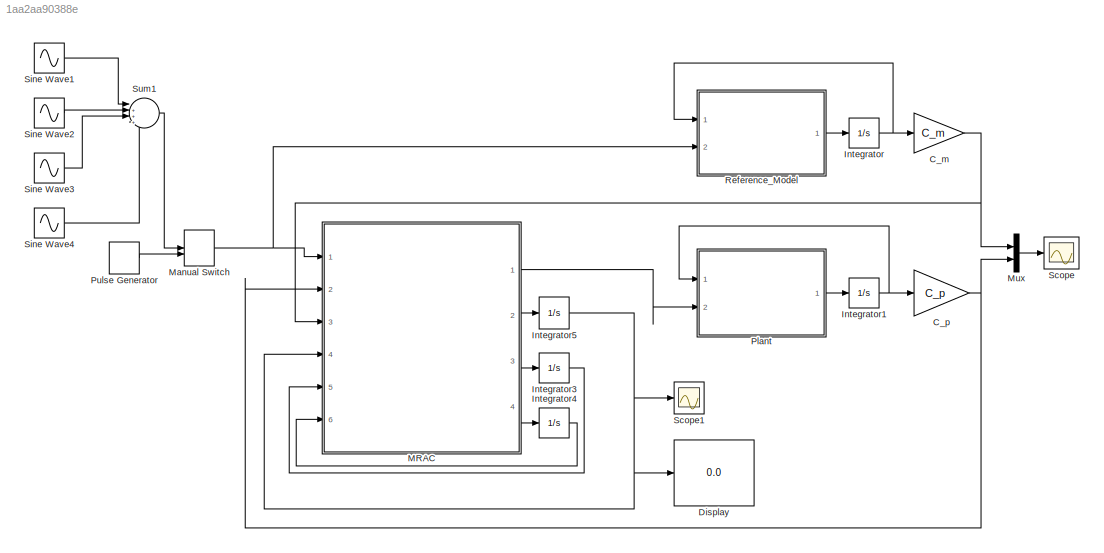
MODEL slx_1aa2aa90388e
KIND model
CONFIG AbsTol = auto
CONFIG FixedStep = auto
CONFIG MaxStep = auto
CONFIG MinStep = auto
CONFIG RelTol = 1e-3
CONFIG SampleTimeConstraint = Unconstrained
CONFIG Solver = VariableStepAuto
CONFIG SolverMode = Auto
CONFIG SolverName = VariableStepAuto
CONFIG StartTime = 0.0
CONFIG StopTime = 15000
BLOCK [Gain] C_m
  Gain = C_m
  Multiplication = Matrix(K*u)
  OutDataTypeStr = Inherit: Inherit via internal rule
  ParamDataTypeStr = Inherit: Inherit via internal rule
  SaturateOnIntegerOverflow = off
BLOCK [Gain] C_p
  Gain = C_p
  Multiplication = Matrix(K*u)
  OutDataTypeStr = Inherit: Inherit via internal rule
  ParamDataTypeStr = Inherit: Inherit via internal rule
  SaturateOnIntegerOverflow = off
BLOCK [Display] Display
  Decimation = 1
  Ports = [1]
BLOCK [Integrator] Integrator
  InitialCondition = x_m_init
  Ports = [1, 1]
BLOCK [Integrator] Integrator1
  InitialCondition = x_p_init
  Ports = [1, 1]
BLOCK [Integrator] Integrator3
  InitialCondition = phi_1_init
  Ports = [1, 1]
BLOCK [Integrator] Integrator4
  InitialCondition = phi_2_init
  Ports = [1, 1]
BLOCK [Integrator] Integrator5
  InitialCondition = param_init
  Ports = [1, 1]
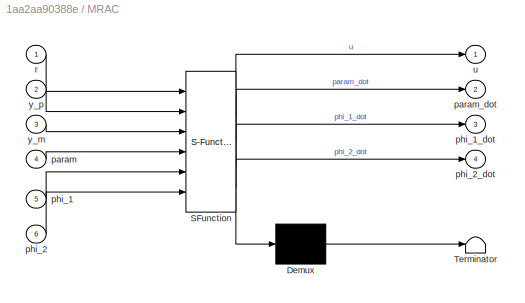
BLOCK [SubSystem] MRAC
  ErrorFcn = Stateflow.Translate.translate
  PermitHierarchicalResolution = ExplicitOnly
  Ports = [6, 4]
  RequestExecContextInheritance = off
  SFBlockType = MATLAB Function
  TreatAsAtomicUnit = on
  Variant = off
BLOCK [Demux] MRAC/ Demux 
  Outputs = 1
  Ports = [1, 1]
BLOCK [S-Function] MRAC/ SFunction 
  EnableBusSupport = on
  FunctionName = sf_sfun
  Parameters = Gamma,Lambda,k_p,l
  PortCounts = [6 5]
  Ports = [6, 5]
  SFunctionDeploymentMode = off
  Tag = Stateflow S-Function simulink_first 3
BLOCK [Terminator] MRAC/ Terminator 
BLOCK [Inport] MRAC/param
  IconDisplay = Port number
  Port = 4
BLOCK [Outport] MRAC/param_dot
  IconDisplay = Port number
  Port = 2
BLOCK [Inport] MRAC/phi_1
  IconDisplay = Port number
  Port = 5
BLOCK [Outport] MRAC/phi_1_dot
  IconDisplay = Port number
  Port = 3
BLOCK [Inport] MRAC/phi_2
  IconDisplay = Port number
  Port = 6
BLOCK [Outport] MRAC/phi_2_dot
  IconDisplay = Port number
  Port = 4
BLOCK [Inport] MRAC/r
  IconDisplay = Port number
BLOCK [Outport] MRAC/u
  IconDisplay = Port number
BLOCK [Inport] MRAC/y_m
  IconDisplay = Port number
  Port = 3
BLOCK [Inport] MRAC/y_p
  IconDisplay = Port number
  Port = 2
BLOCK [ManualSwitch] Manual Switch
BLOCK [Mux] Mux
  DisplayOption = bar
  Inputs = 2
  Ports = [2, 1]
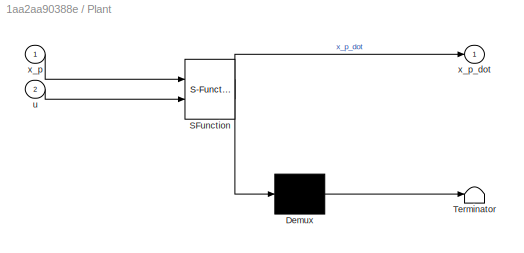
BLOCK [SubSystem] Plant
  ErrorFcn = Stateflow.Translate.translate
  PermitHierarchicalResolution = ExplicitOnly
  Ports = [2, 1]
  RequestExecContextInheritance = off
  SFBlockType = MATLAB Function
  TreatAsAtomicUnit = on
  Variant = off
BLOCK [Demux] Plant/ Demux 
  Outputs = 1
  Ports = [1, 1]
BLOCK [S-Function] Plant/ SFunction 
  EnableBusSupport = on
  FunctionName = sf_sfun
  Parameters = A_p,B_p,C_p,D_p
  PortCounts = [2 2]
  Ports = [2, 2]
  SFunctionDeploymentMode = off
  Tag = Stateflow S-Function simulink_first 2
BLOCK [Terminator] Plant/ Terminator 
BLOCK [Inport] Plant/u
  IconDisplay = Port number
  Port = 2
BLOCK [Inport] Plant/x_p
  IconDisplay = Port number
BLOCK [Outport] Plant/x_p_dot
  IconDisplay = Port number
BLOCK [DiscretePulseGenerator] Pulse Generator
  Amplitude = 4
  Period = 20
  Ports = [0, 1]
  PulseType = Time based
  PulseWidth = 50
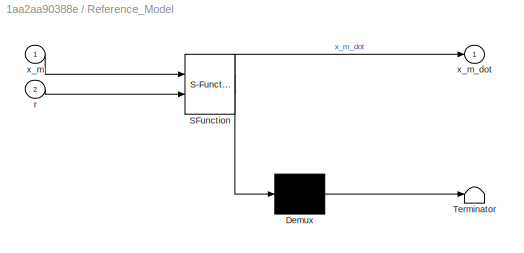
BLOCK [SubSystem] Reference_Model
  ErrorFcn = Stateflow.Translate.translate
  PermitHierarchicalResolution = ExplicitOnly
  Ports = [2, 1]
  RequestExecContextInheritance = off
  SFBlockType = MATLAB Function
  TreatAsAtomicUnit = on
  Variant = off
BLOCK [Demux] Reference_Model/ Demux 
  Outputs = 1
  Ports = [1, 1]
BLOCK [S-Function] Reference_Model/ SFunction 
  EnableBusSupport = on
  FunctionName = sf_sfun
  Parameters = A_m,B_m,C_m,D_m
  PortCounts = [2 2]
  Ports = [2, 2]
  SFunctionDeploymentMode = off
  Tag = Stateflow S-Function simulink_first 1
BLOCK [Terminator] Reference_Model/ Terminator 
BLOCK [Inport] Reference_Model/r
  IconDisplay = Port number
  Port = 2
BLOCK [Inport] Reference_Model/x_m
  IconDisplay = Port number
BLOCK [Outport] Reference_Model/x_m_dot
  IconDisplay = Port number
BLOCK [Scope] Scope
  Ports = [1]
  ScopeSpecificationString = Simulink.scopes.TimeScopeBlockCfg('CurrentConfiguration', extmgr.ConfigurationSet(extmgr.Configuration('Core','General UI',true),extmgr.Configuration('Core','Source UI',true),extmgr.Configuration('Sources','WiredSimulink',true),extmgr.Configuration('Visuals','Time Domain',true,'SerializedDisplays',{struct('MinYLimReal','-0.45095','MaxYLimReal','4.05855','YLabelReal','','MinYLimMag','0.00000','MaxY...<+1400ch>
BLOCK [Scope] Scope1
  Ports = [1]
  ScopeSpecificationString = Simulink.scopes.TimeScopeBlockCfg('CurrentConfiguration', extmgr.ConfigurationSet(extmgr.Configuration('Core','General UI',true),extmgr.Configuration('Core','Source UI',true),extmgr.Configuration('Sources','WiredSimulink',true,'DataLoggingVariableName','ScopeData1'),extmgr.Configuration('Visuals','Time Domain',true,'SerializedDisplays',{struct('MinYLimReal','-16.54938','MaxYLimReal','10.78027','YL...<+1495ch>
BLOCK [Sin] Sine Wave1
  Frequency = 3
  Ports = [0, 1]
  SampleTime = 0
BLOCK [Sin] Sine Wave2
  Frequency = 3/2
  Ports = [0, 1]
  SampleTime = 0
BLOCK [Sin] Sine Wave3
  Frequency = 3/4
  Ports = [0, 1]
  SampleTime = 0
BLOCK [Sin] Sine Wave4
  Frequency = 3/8
  Ports = [0, 1]
  SampleTime = 0
BLOCK [Sum] Sum1
  IconShape = round
  InputSameDT = off
  Inputs = |++++
  OutDataTypeStr = Inherit: Inherit via internal rule
  Ports = [4, 1]
  SaturateOnIntegerOverflow = off
NET C_m:1 -> MRAC:3, Mux:1
NET C_p:1 -> MRAC:2, Mux:2
NET Integrator1:1 -> C_p:1, Plant:1
LINE Integrator3:1 -> MRAC:5
LINE Integrator4:1 -> MRAC:6
NET Integrator5:1 -> Display:1, MRAC:4, Scope1:1
NET Integrator:1 -> C_m:1, Reference_Model:1
LINE MRAC:1 -> Plant:2
LINE MRAC:2 -> Integrator5:1
LINE MRAC:3 -> Integrator3:1
LINE MRAC:4 -> Integrator4:1
NET Manual Switch:1 -> MRAC:1, Reference_Model:2
LINE Mux:1 -> Scope:1
LINE Plant:1 -> Integrator1:1
LINE Pulse Generator:1 -> Manual Switch:2
LINE Reference_Model:1 -> Integrator:1
LINE Sine Wave1:1 -> Sum1:1
LINE Sine Wave2:1 -> Sum1:2
LINE Sine Wave3:1 -> Sum1:3
LINE Sine Wave4:1 -> Sum1:4
LINE Sum1:1 -> Manual Switch:1
note: NET lines group one-source signal fan-out (src -> all destinations, sorted); 1:1 wires keep LINE
CHART Reference_Model states=1 transitions=1
  STATE_LABEL 'eML_blk_kernel()'
  STATE_LABEL 'SCRIPT:\nfunction x_m_dot  = fcn(x_m,r,A_m,B_m,C_m,D_m)\n%#Reference model for the MRAC\n\nx_m_dot = A_m*x_m + B_m*r;\n%y_m = C_m*x_m + D_m*r;'
CHART Plant states=1 transitions=1
  STATE_LABEL 'eML_blk_kernel()'
  STATE_LABEL 'SCRIPT:\nfunction x_p_dot  = fcn(x_p,u,A_p,B_p,C_p,D_p)\n%#Plant model\n\nx_p_dot = A_p*x_p + B_p*u;\n%y_p = C_p*x_p + D_p*u;'
CHART MRAC states=1 transitions=1
  STATE_LABEL 'eML_blk_kernel()'
  STATE_LABEL "SCRIPT:\nfunction [u,param_dot,phi_1_dot,phi_2_dot]  = fcn(r,y_p,y_m,Gamma,param,k_p,phi_1,phi_2,Lambda,l)\n\n% Error \nerror = y_p - y_m;      % Error between the states\n\n% Parameter estimation with regressor\nphi = [r,phi_1',y_p,phi_2']';\n\n% Regressor\nparam_dot = -sign(k_p).*error.*Gamma*phi;       % Adaptive parameter law\n\n%Adaptive control law\nu = param'*phi;\n\nphi_1_dot = Lambda*phi_1 + l*u;       ...<+95ch>"
